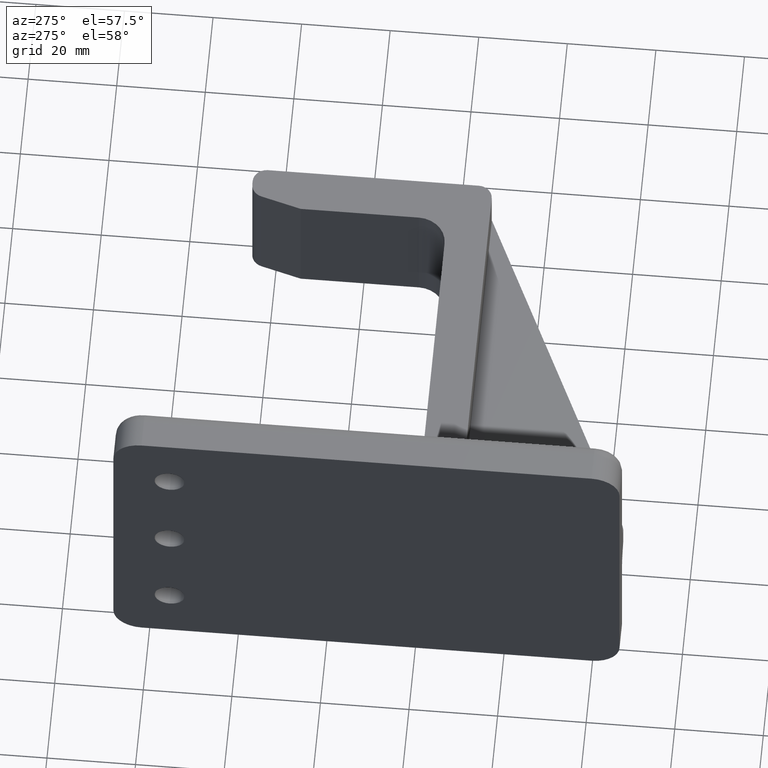
[diagram: clean part render]
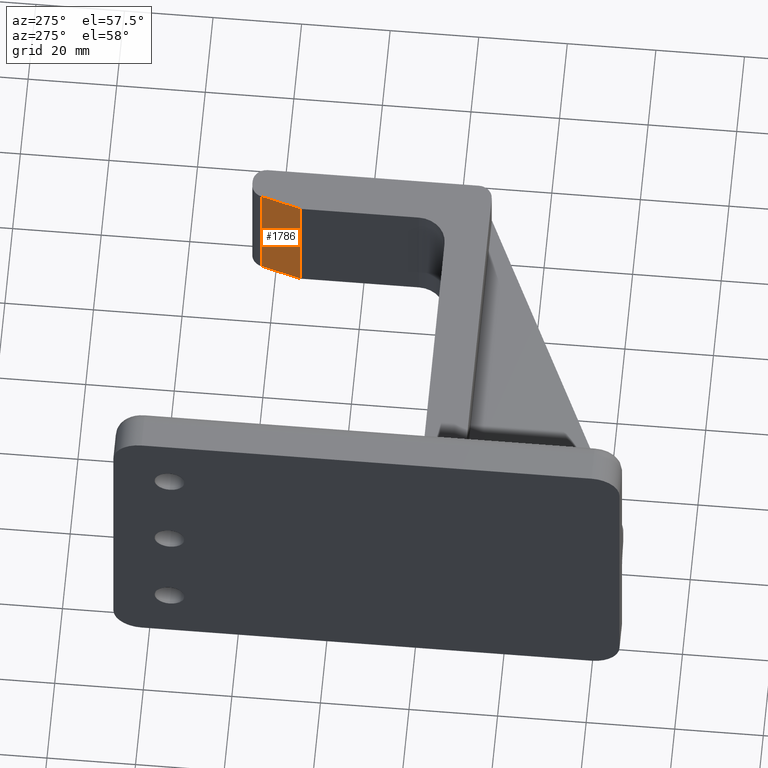
[diagram: same view with one face highlighted and labeled with its STEP entity id]
A machine part, auxiliary view. The second image highlights one B-rep face of the part: STEP entity #1786.
In plain terms, the highlighted planar face has unit normal (0.9634, -0.268, 0).
Its self-contained STEP definition (entity closure, byte-faithful):
#84 = ORIENTED_EDGE ( 'NONE', *, *, #668, .T. ) ;
#85 = ORIENTED_EDGE ( 'NONE', *, *, #723, .F. ) ;
#165 = VERTEX_POINT ( 'NONE', #652 ) ;
#166 = VERTEX_POINT ( 'NONE', #653 ) ;
#168 = VERTEX_POINT ( 'NONE', #288 ) ;
#169 = VERTEX_POINT ( 'NONE', #289 ) ;
#257 = CARTESIAN_POINT ( 'NONE',  ( 3.773993694186516200, 3.655080215799567400, 0.5749999999999999600 ) ) ;
#261 = CARTESIAN_POINT ( 'NONE',  ( 3.773993694186516200, 3.655080215799567400, -0.5749999999999999600 ) ) ;
#262 = DIRECTION ( 'NONE',  ( -0.2679665092205985600, -0.9634282277036140300, -0.0000000000000000000 ) ) ;
#272 = CARTESIAN_POINT ( 'NONE',  ( 3.773993694186516200, 3.655080215799567400, 0.5749999999999999600 ) ) ;
#273 = DIRECTION ( 'NONE',  ( -0.0000000000000000000, -0.0000000000000000000, -1.000000000000000000 ) ) ;
#274 = DIRECTION ( 'NONE',  ( -0.2679665092205985600, -0.9634282277036140300, -0.0000000000000000000 ) ) ;
#288 = CARTESIAN_POINT ( 'NONE',  ( 3.773993694186516200, 3.655080215799567400, -0.5749999999999999600 ) ) ;
#289 = CARTESIAN_POINT ( 'NONE',  ( 3.773993694186516200, 3.655080215799567400, 0.5749999999999999600 ) ) ;
#495 = LINE ( 'NONE', #1121, #520 ) ;
#517 = VECTOR ( 'NONE', #273, 39.37007874015748100 ) ;
#520 = VECTOR ( 'NONE', #1118, 39.37007874015748100 ) ;
#521 = VECTOR ( 'NONE', #262, 39.37007874015748900 ) ;
#523 = LINE ( 'NONE', #257, #521 ) ;
#527 = LINE ( 'NONE', #272, #517 ) ;
#528 = LINE ( 'NONE', #261, #530 ) ;
#530 = VECTOR ( 'NONE', #274, 39.37007874015748900 ) ;
#538 = EDGE_LOOP ( 'NONE', ( #1315, #85, #1564, #84 ) ) ;
#652 = CARTESIAN_POINT ( 'NONE',  ( 3.873542854477329800, 4.012992371864586800, -0.5749999999999999600 ) ) ;
#653 = CARTESIAN_POINT ( 'NONE',  ( 3.873542854477329800, 4.012992371864586800, 0.5749999999999999600 ) ) ;
#668 = EDGE_CURVE ( 'NONE', #166, #165, #495, .T. ) ;
#670 = EDGE_CURVE ( 'NONE', #166, #169, #523, .T. ) ;
#723 = EDGE_CURVE ( 'NONE', #169, #168, #527, .T. ) ;
#724 = EDGE_CURVE ( 'NONE', #165, #168, #528, .T. ) ;
#957 = CARTESIAN_POINT ( 'NONE',  ( 3.773993694186516200, 3.655080215799567400, 0.5749999999999999600 ) ) ;
#961 = PLANE ( 'NONE',  #1850 ) ;
#964 = DIRECTION ( 'NONE',  ( 0.9634282277036141400, -0.2679665092205985600, 0.0000000000000000000 ) ) ;
#965 = DIRECTION ( 'NONE',  ( 0.2679665092205985000, 0.9634282277036140300, 0.0000000000000000000 ) ) ;
#1118 = DIRECTION ( 'NONE',  ( -0.0000000000000000000, -0.0000000000000000000, -1.000000000000000000 ) ) ;
#1121 = CARTESIAN_POINT ( 'NONE',  ( 3.873542854477329800, 4.012992371864586800, 0.5749999999999999600 ) ) ;
#1315 = ORIENTED_EDGE ( 'NONE', *, *, #724, .T. ) ;
#1376 = FACE_OUTER_BOUND ( 'NONE', #538, .T. ) ;
#1564 = ORIENTED_EDGE ( 'NONE', *, *, #670, .F. ) ;
#1786 = ADVANCED_FACE ( 'NONE', ( #1376 ), #961, .F. ) ;
#1850 = AXIS2_PLACEMENT_3D ( 'NONE', #957, #964, #965 ) ;